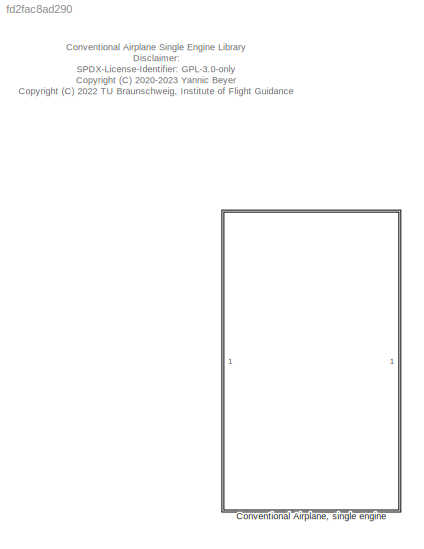
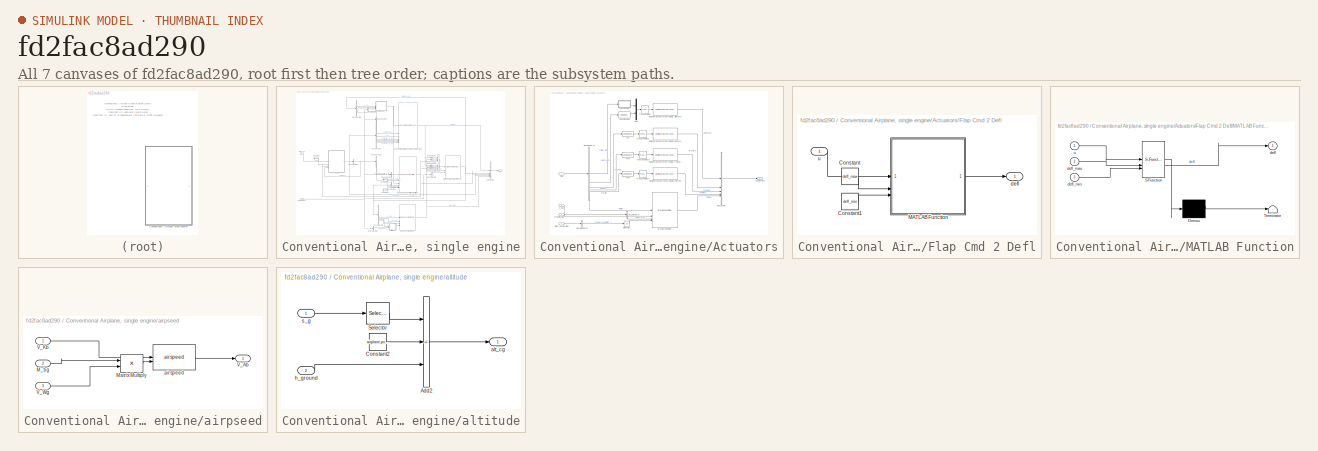
[diagram: thumbnail index - all 7 canvases of the model, root first then tree order]
MODEL slx_fd2fac8ad290
KIND library
CONFIG AbsTol = auto
CONFIG EnableMultiTasking = off
CONFIG FixedStep = auto
CONFIG MaxStep = auto
CONFIG MinStep = auto
CONFIG RelTol = 1e-3
CONFIG SampleTimeConstraint = Unconstrained
CONFIG SolverName = VariableStepAuto
CONFIG StartTime = 0.0
CONFIG StopTime = 10.0
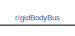
[diagram: Conventional Airplane, single engine - part 1/6, top center region]
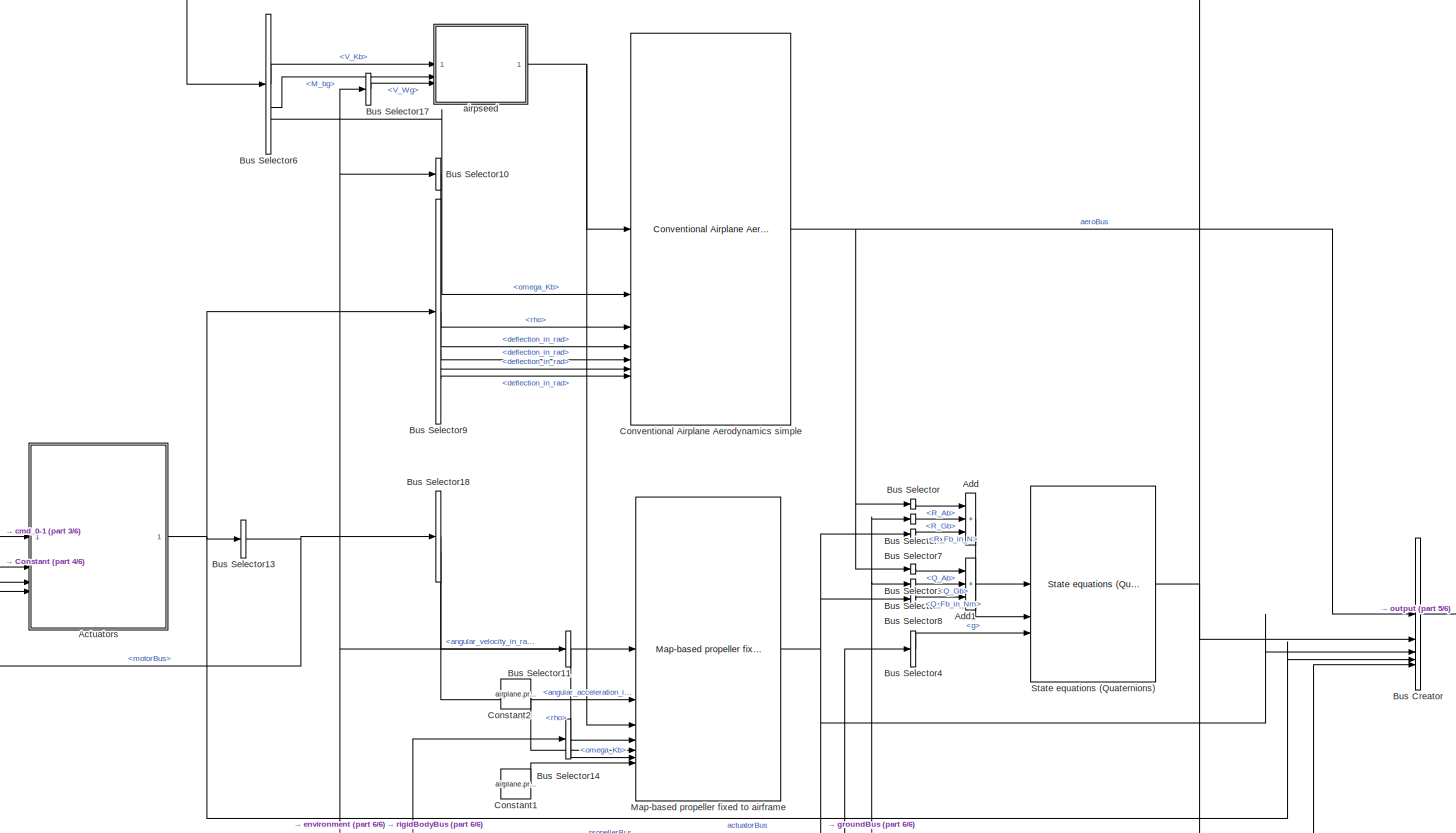
[diagram: Conventional Airplane, single engine - part 2/6, full width, middle band]
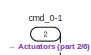
[diagram: Conventional Airplane, single engine - part 3/6, middle left region]
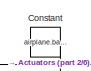
[diagram: Conventional Airplane, single engine - part 4/6, middle left region]
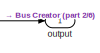
[diagram: Conventional Airplane, single engine - part 5/6, middle right region]
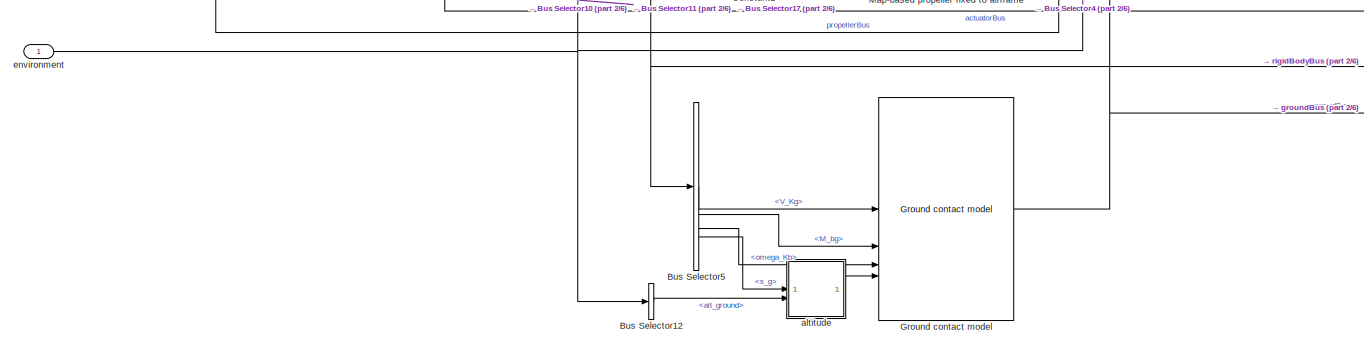
[diagram: Conventional Airplane, single engine - part 6/6, full width, bottom band]
BLOCK [SubSystem] Conventional Airplane, single engine
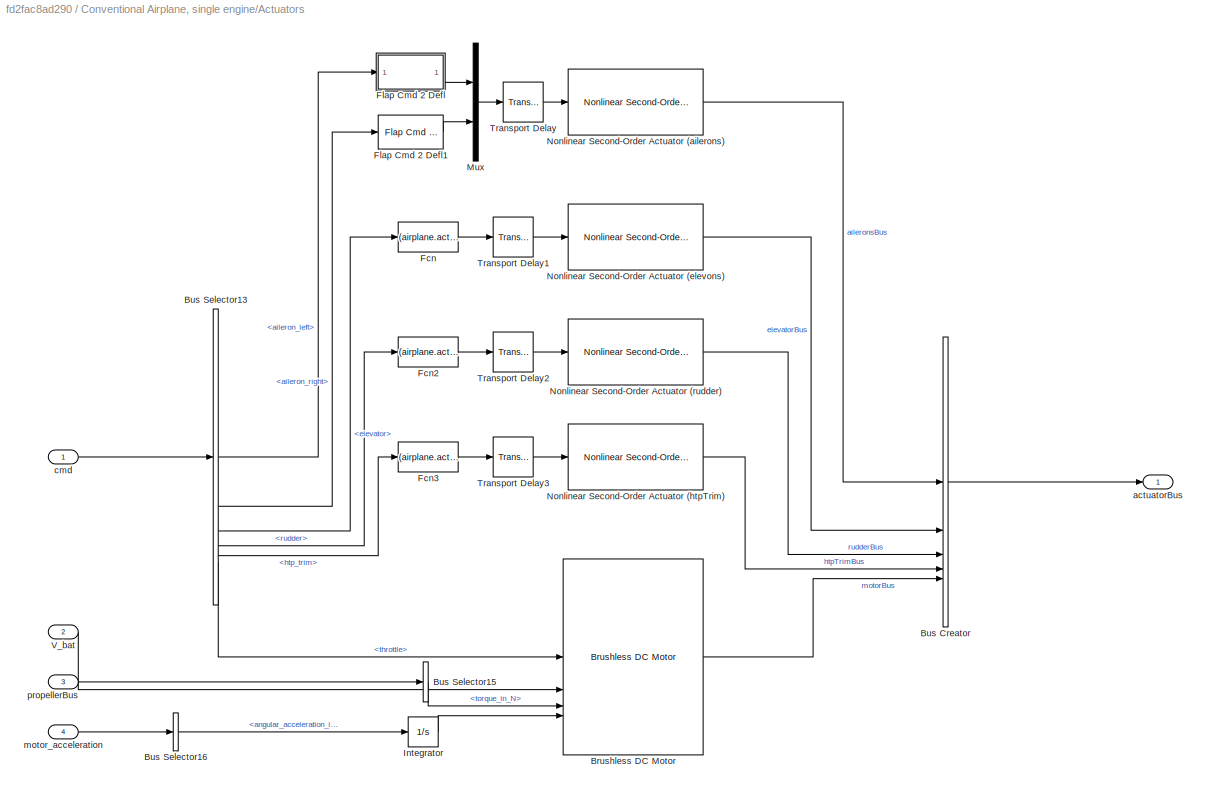
BLOCK [SubSystem] Conventional Airplane, single engine/Actuators
BLOCK [Reference] Conventional Airplane, single engine/Actuators/Brushless DC Motor  REF=actuators_lib/Brushless DC Motor  (lib defined in slx_c2decc952d1f)
  SourceBlock = actuators_lib/Brushless DC Motor
  SourceProductName = LADAC
BLOCK [BusCreator] Conventional Airplane, single engine/Actuators/Bus Creator
  DisplayOption = bar
  InheritFromInputs = on
  Inputs = 5
BLOCK [BusSelector] Conventional Airplane, single engine/Actuators/Bus Selector13
  OutputSignals = aileron_left,aileron_right,elevator,rudder,htp_trim,throttle
BLOCK [BusSelector] Conventional Airplane, single engine/Actuators/Bus Selector15
  OutputSignals = torque_in_N
BLOCK [BusSelector] Conventional Airplane, single engine/Actuators/Bus Selector16
  OutputSignals = angular_acceleration_in_rad_per_square_s
BLOCK [Fcn] Conventional Airplane, single engine/Actuators/Fcn
  Expr = (airplane.act.elevator.deflectionMax - airplane.act.elevator.deflectionMin)*u + airplane.act.elevator.deflectionMin
BLOCK [Fcn] Conventional Airplane, single engine/Actuators/Fcn2
  Expr = (airplane.act.rudder.deflectionMax - airplane.act.rudder.deflectionMin)*u + airplane.act.rudder.deflectionMin
BLOCK [Fcn] Conventional Airplane, single engine/Actuators/Fcn3
  Expr = (airplane.act.htpTrim.deflectionMax - airplane.act.htpTrim.deflectionMin)*u + airplane.act.htpTrim.deflectionMin
BLOCK [SubSystem] Conventional Airplane, single engine/Actuators/Flap Cmd 2 Defl
BLOCK [Constant] Conventional Airplane, single engine/Actuators/Flap Cmd 2 Defl/Constant
  Value = defl_max
BLOCK [Constant] Conventional Airplane, single engine/Actuators/Flap Cmd 2 Defl/Constant1
  Value = defl_min
BLOCK [SubSystem] Conventional Airplane, single engine/Actuators/Flap Cmd 2 Defl/MATLAB Function
  ErrorFcn = Stateflow.Translate.translate
  PermitHierarchicalResolution = ExplicitOnly
  SFBlockType = MATLAB Function
  TreatAsAtomicUnit = on
BLOCK [Demux] Conventional Airplane, single engine/Actuators/Flap Cmd 2 Defl/MATLAB Function/ Demux 
  Outputs = 1
BLOCK [S-Function] Conventional Airplane, single engine/Actuators/Flap Cmd 2 Defl/MATLAB Function/ SFunction 
  EnableBusSupport = off
  FunctionName = sf_sfun
  PortCounts = [3 2]
  SFcnIsStateOwnerBlock = off
  SFunctionDeploymentMode = off
  Tag = Stateflow S-Function 1
BLOCK [Terminator] Conventional Airplane, single engine/Actuators/Flap Cmd 2 Defl/MATLAB Function/ Terminator 
BLOCK [Outport] Conventional Airplane, single engine/Actuators/Flap Cmd 2 Defl/MATLAB Function/defl
  VectorParamsAs1DForOutWhenUnconnected = off
BLOCK [Inport] Conventional Airplane, single engine/Actuators/Flap Cmd 2 Defl/MATLAB Function/defl_max
  Port = 2
BLOCK [Inport] Conventional Airplane, single engine/Actuators/Flap Cmd 2 Defl/MATLAB Function/defl_min
  Port = 3
BLOCK [Inport] Conventional Airplane, single engine/Actuators/Flap Cmd 2 Defl/MATLAB Function/u
BLOCK [Outport] Conventional Airplane, single engine/Actuators/Flap Cmd 2 Defl/defl
  VectorParamsAs1DForOutWhenUnconnected = off
BLOCK [Inport] Conventional Airplane, single engine/Actuators/Flap Cmd 2 Defl/u
BLOCK [Reference] Conventional Airplane, single engine/Actuators/Flap Cmd 2 Defl1  REF=$bdroot/Conventional Airplane,
single engine/Actuators/Flap Cmd 2 Defl
  SourceBlock = $bdroot/Conventional Airplane,\nsingle engine/Actuators/Flap Cmd 2 Defl
BLOCK [Integrator] Conventional Airplane, single engine/Actuators/Integrator
  ContinuousStateAttributes = 'motor_speed'
  InitialCondition = airplane.ic.motor_speed
BLOCK [Mux] Conventional Airplane, single engine/Actuators/Mux
  DisplayOption = bar
  Inputs = 2
BLOCK [Reference] Conventional Airplane, single engine/Actuators/Nonlinear Second-Order Actuator (ailerons)  REF=actuators_lib/Nonlinear Second-Order Actuator  (lib defined in slx_c2decc952d1f)
  SourceBlock = actuators_lib/Nonlinear Second-Order Actuator
  SourceProductName = LADAC
BLOCK [Reference] Conventional Airplane, single engine/Actuators/Nonlinear Second-Order Actuator (elevons)  REF=actuators_lib/Nonlinear Second-Order Actuator  (lib defined in slx_c2decc952d1f)
  SourceBlock = actuators_lib/Nonlinear Second-Order Actuator
  SourceProductName = LADAC
BLOCK [Reference] Conventional Airplane, single engine/Actuators/Nonlinear Second-Order Actuator (htpTrim)  REF=actuators_lib/Nonlinear Second-Order Actuator  (lib defined in slx_c2decc952d1f)
  SourceBlock = actuators_lib/Nonlinear Second-Order Actuator
  SourceProductName = LADAC
BLOCK [Reference] Conventional Airplane, single engine/Actuators/Nonlinear Second-Order Actuator (rudder)  REF=actuators_lib/Nonlinear Second-Order Actuator  (lib defined in slx_c2decc952d1f)
  SourceBlock = actuators_lib/Nonlinear Second-Order Actuator
  SourceProductName = LADAC
BLOCK [TransportDelay] Conventional Airplane, single engine/Actuators/Transport Delay
  DelayTime = airplane.act.ailerons.delay
BLOCK [TransportDelay] Conventional Airplane, single engine/Actuators/Transport Delay1
  DelayTime = airplane.act.elevator.delay
BLOCK [TransportDelay] Conventional Airplane, single engine/Actuators/Transport Delay2
  DelayTime = airplane.act.rudder.delay
BLOCK [TransportDelay] Conventional Airplane, single engine/Actuators/Transport Delay3
  DelayTime = airplane.act.htpTrim.delay
BLOCK [Inport] Conventional Airplane, single engine/Actuators/V_bat
  Port = 2
BLOCK [Outport] Conventional Airplane, single engine/Actuators/actuatorBus
  VectorParamsAs1DForOutWhenUnconnected = off
BLOCK [Inport] Conventional Airplane, single engine/Actuators/cmd
BLOCK [Inport] Conventional Airplane, single engine/Actuators/motor_acceleration
  Port = 4
BLOCK [Inport] Conventional Airplane, single engine/Actuators/propellerBus
  Port = 3
BLOCK [Sum] Conventional Airplane, single engine/Add
  IconShape = rectangular
  Inputs = +++
BLOCK [Sum] Conventional Airplane, single engine/Add1
  IconShape = rectangular
  Inputs = +++
BLOCK [BusCreator] Conventional Airplane, single engine/Bus Creator
  DisplayOption = bar
  InheritFromInputs = on
  Inputs = 5
BLOCK [BusSelector] Conventional Airplane, single engine/Bus Selector
  OutputSignals = R_Ab
BLOCK [BusSelector] Conventional Airplane, single engine/Bus Selector1
  OutputSignals = Q_Ab
BLOCK [BusSelector] Conventional Airplane, single engine/Bus Selector10
  OutputSignals = atmosphere.rho
BLOCK [BusSelector] Conventional Airplane, single engine/Bus Selector11
  OutputSignals = atmosphere.rho
BLOCK [BusSelector] Conventional Airplane, single engine/Bus Selector12
  OutputSignals = alt_ground
BLOCK [BusSelector] Conventional Airplane, single engine/Bus Selector13
  OutputSignals = motorBus
BLOCK [BusSelector] Conventional Airplane, single engine/Bus Selector14
  OutputSignals = omega_Kb
BLOCK [BusSelector] Conventional Airplane, single engine/Bus Selector17
  OutputSignals = wind.V_Wg
BLOCK [BusSelector] Conventional Airplane, single engine/Bus Selector18
  OutputSignals = angular_velocity_in_rad_per_s,angular_acceleration_in_rad_per_square_s
BLOCK [BusSelector] Conventional Airplane, single engine/Bus Selector2
  OutputSignals = forces_and_moments.R_Gb
BLOCK [BusSelector] Conventional Airplane, single engine/Bus Selector3
  OutputSignals = forces_and_moments.Q_Gb
BLOCK [BusSelector] Conventional Airplane, single engine/Bus Selector4
  OutputSignals = g
BLOCK [BusSelector] Conventional Airplane, single engine/Bus Selector5
  OutputSignals = V_Kg,M_bg,omega_Kb,s_g
BLOCK [BusSelector] Conventional Airplane, single engine/Bus Selector6
  OutputSignals = V_Kb,M_bg,omega_Kb
BLOCK [BusSelector] Conventional Airplane, single engine/Bus Selector7
  OutputSignals = R_Fb_in_N
BLOCK [BusSelector] Conventional Airplane, single engine/Bus Selector8
  OutputSignals = Q_Fb_in_Nm
BLOCK [BusSelector] Conventional Airplane, single engine/Bus Selector9
  OutputSignals = aileronsBus.deflection_in_rad,elevatorBus.deflection_in_rad,rudderBus.deflection_in_rad,htpTrimBus.deflection_in_rad
BLOCK [Constant] Conventional Airplane, single engine/Constant
  Value = airplane.bat.V
BLOCK [Constant] Conventional Airplane, single engine/Constant1
  Value = airplane.prop.config.Rot
BLOCK [Constant] Conventional Airplane, single engine/Constant2
  Value = airplane.prop.config.Pos - airplane.config.cg
BLOCK [Reference] Conventional Airplane, single engine/Conventional Airplane Aerodynamics simple  REF=conventional_airplane_aerodynamics_lib/Conventional Airplane Aerodynamics  (lib defined in slx_d93a6ff8d1eb)
simple
  SourceBlock = conventional_airplane_aerodynamics_lib/Conventional Airplane Aerodynamics\nsimple
  SourceProductName = LADAC
BLOCK [Reference] Conventional Airplane, single engine/Ground contact model  REF=ground_lib/Ground contact model  (lib defined in slx_83645a88b0f4)
  SourceBlock = ground_lib/Ground contact model
  SourceProductName = LADAC
BLOCK [Reference] Conventional Airplane, single engine/Map-based propeller fixed to airframe  REF=propulsion_lib/Map-based propeller fixed to airframe  (lib defined in slx_12561ba25cc8)
  SourceBlock = propulsion_lib/Map-based propeller fixed to airframe
  SourceProductName = LADAC
BLOCK [Reference] Conventional Airplane, single engine/State equations (Quaternions)  REF=rigidBody_lib/State equations
(Quaternions)
  SourceBlock = rigidBody_lib/State equations\n(Quaternions)
  SourceProductName = LADAC
BLOCK [SubSystem] Conventional Airplane, single engine/airpseed
BLOCK [Inport] Conventional Airplane, single engine/airpseed/M_bg
  Port = 2
BLOCK [Product] Conventional Airplane, single engine/airpseed/Matrix Multiply
  Multiplication = Matrix(*)
BLOCK [Outport] Conventional Airplane, single engine/airpseed/V_Ab
  VectorParamsAs1DForOutWhenUnconnected = off
BLOCK [Inport] Conventional Airplane, single engine/airpseed/V_Kb
BLOCK [Inport] Conventional Airplane, single engine/airpseed/V_Wg
  Port = 3
BLOCK [Reference] Conventional Airplane, single engine/airpseed/airspeed  REF=flight_parameters_lib/airspeed  (lib defined in slx_01e6108afe6f)
  SourceBlock = flight_parameters_lib/airspeed
  SourceProductName = LADAC
BLOCK [SubSystem] Conventional Airplane, single engine/altitude
BLOCK [Sum] Conventional Airplane, single engine/altitude/Add2
  IconShape = rectangular
  Inputs = -+-
BLOCK [Constant] Conventional Airplane, single engine/altitude/Constant2
  Value = airplane.posRef.alt
BLOCK [Selector] Conventional Airplane, single engine/altitude/Selector
  IndexOptions = Index vector (dialog)
  Indices = 3
  InputPortWidth = 3
  OutputSizes = 1
BLOCK [Outport] Conventional Airplane, single engine/altitude/alt_cg
  VectorParamsAs1DForOutWhenUnconnected = off
BLOCK [Inport] Conventional Airplane, single engine/altitude/h_ground
  Port = 2
BLOCK [Inport] Conventional Airplane, single engine/altitude/s_g
BLOCK [Inport] Conventional Airplane, single engine/cmd_0-1
  OutDataTypeStr = Bus: cmdBus
  Port = 2
BLOCK [Inport] Conventional Airplane, single engine/environment
  OutDataTypeStr = Bus: envirBus
BLOCK [Outport] Conventional Airplane, single engine/output
  VectorParamsAs1DForOutWhenUnconnected = off
ANNOTATION (root): Conventional Airplane Single Engine Library Disclaimer: SPDX-License-Identifier: GPL-3.0-only <copyright redacted>
LINE Conventional Airplane, single engine/Actuators/Brushless DC Motor:1 -> Conventional Airplane, single engine/Actuators/Bus Creator:5
LINE Conventional Airplane, single engine/Actuators/Bus Creator:1 -> Conventional Airplane, single engine/Actuators/actuatorBus:1
LINE Conventional Airplane, single engine/Actuators/Bus Selector13:1 -> Conventional Airplane, single engine/Actuators/Flap Cmd 2 Defl:1
LINE Conventional Airplane, single engine/Actuators/Bus Selector13:2 -> Conventional Airplane, single engine/Actuators/Flap Cmd 2 Defl1:1
LINE Conventional Airplane, single engine/Actuators/Bus Selector13:3 -> Conventional Airplane, single engine/Actuators/Fcn:1
LINE Conventional Airplane, single engine/Actuators/Bus Selector13:4 -> Conventional Airplane, single engine/Actuators/Fcn2:1
LINE Conventional Airplane, single engine/Actuators/Bus Selector13:5 -> Conventional Airplane, single engine/Actuators/Fcn3:1
LINE Conventional Airplane, single engine/Actuators/Bus Selector13:6 -> Conventional Airplane, single engine/Actuators/Brushless DC Motor:1
LINE Conventional Airplane, single engine/Actuators/Bus Selector15:1 -> Conventional Airplane, single engine/Actuators/Brushless DC Motor:3
LINE Conventional Airplane, single engine/Actuators/Bus Selector16:1 -> Conventional Airplane, single engine/Actuators/Integrator:1
LINE Conventional Airplane, single engine/Actuators/Fcn2:1 -> Conventional Airplane, single engine/Actuators/Transport Delay2:1
LINE Conventional Airplane, single engine/Actuators/Fcn3:1 -> Conventional Airplane, single engine/Actuators/Transport Delay3:1
LINE Conventional Airplane, single engine/Actuators/Fcn:1 -> Conventional Airplane, single engine/Actuators/Transport Delay1:1
LINE Conventional Airplane, single engine/Actuators/Flap Cmd 2 Defl/Constant1:1 -> Conventional Airplane, single engine/Actuators/Flap Cmd 2 Defl/MATLAB Function:3
LINE Conventional Airplane, single engine/Actuators/Flap Cmd 2 Defl/Constant:1 -> Conventional Airplane, single engine/Actuators/Flap Cmd 2 Defl/MATLAB Function:2
LINE Conventional Airplane, single engine/Actuators/Flap Cmd 2 Defl/MATLAB Function:1 -> Conventional Airplane, single engine/Actuators/Flap Cmd 2 Defl/defl:1
LINE Conventional Airplane, single engine/Actuators/Flap Cmd 2 Defl/u:1 -> Conventional Airplane, single engine/Actuators/Flap Cmd 2 Defl/MATLAB Function:1
LINE Conventional Airplane, single engine/Actuators/Flap Cmd 2 Defl1:1 -> Conventional Airplane, single engine/Actuators/Mux:2
LINE Conventional Airplane, single engine/Actuators/Flap Cmd 2 Defl:1 -> Conventional Airplane, single engine/Actuators/Mux:1
LINE Conventional Airplane, single engine/Actuators/Integrator:1 -> Conventional Airplane, single engine/Actuators/Brushless DC Motor:4
LINE Conventional Airplane, single engine/Actuators/Mux:1 -> Conventional Airplane, single engine/Actuators/Transport Delay:1
LINE Conventional Airplane, single engine/Actuators/Nonlinear Second-Order Actuator (ailerons):1 -> Conventional Airplane, single engine/Actuators/Bus Creator:1
LINE Conventional Airplane, single engine/Actuators/Nonlinear Second-Order Actuator (elevons):1 -> Conventional Airplane, single engine/Actuators/Bus Creator:2
LINE Conventional Airplane, single engine/Actuators/Nonlinear Second-Order Actuator (htpTrim):1 -> Conventional Airplane, single engine/Actuators/Bus Creator:4
LINE Conventional Airplane, single engine/Actuators/Nonlinear Second-Order Actuator (rudder):1 -> Conventional Airplane, single engine/Actuators/Bus Creator:3
LINE Conventional Airplane, single engine/Actuators/Transport Delay1:1 -> Conventional Airplane, single engine/Actuators/Nonlinear Second-Order Actuator (elevons):1
LINE Conventional Airplane, single engine/Actuators/Transport Delay2:1 -> Conventional Airplane, single engine/Actuators/Nonlinear Second-Order Actuator (rudder):1
LINE Conventional Airplane, single engine/Actuators/Transport Delay3:1 -> Conventional Airplane, single engine/Actuators/Nonlinear Second-Order Actuator (htpTrim):1
LINE Conventional Airplane, single engine/Actuators/Transport Delay:1 -> Conventional Airplane, single engine/Actuators/Nonlinear Second-Order Actuator (ailerons):1
LINE Conventional Airplane, single engine/Actuators/V_bat:1 -> Conventional Airplane, single engine/Actuators/Brushless DC Motor:2
LINE Conventional Airplane, single engine/Actuators/cmd:1 -> Conventional Airplane, single engine/Actuators/Bus Selector13:1
LINE Conventional Airplane, single engine/Actuators/motor_acceleration:1 -> Conventional Airplane, single engine/Actuators/Bus Selector16:1
LINE Conventional Airplane, single engine/Actuators/propellerBus:1 -> Conventional Airplane, single engine/Actuators/Bus Selector15:1
NET Conventional Airplane, single engine/Actuators:1 -> Conventional Airplane, single engine/Bus Creator:4, Conventional Airplane, single engine/Bus Selector13:1, Conventional Airplane, single engine/Bus Selector9:1
LINE Conventional Airplane, single engine/Add1:1 -> Conventional Airplane, single engine/State equations (Quaternions):2
LINE Conventional Airplane, single engine/Add:1 -> Conventional Airplane, single engine/State equations (Quaternions):1
LINE Conventional Airplane, single engine/Bus Creator:1 -> Conventional Airplane, single engine/output:1
LINE Conventional Airplane, single engine/Bus Selector10:1 -> Conventional Airplane, single engine/Conventional Airplane Aerodynamics simple:3
LINE Conventional Airplane, single engine/Bus Selector11:1 -> Conventional Airplane, single engine/Map-based propeller fixed to airframe:4
LINE Conventional Airplane, single engine/Bus Selector12:1 -> Conventional Airplane, single engine/altitude:2
NET Conventional Airplane, single engine/Bus Selector13:1 -> Conventional Airplane, single engine/Actuators:4, Conventional Airplane, single engine/Bus Selector18:1
LINE Conventional Airplane, single engine/Bus Selector14:1 -> Conventional Airplane, single engine/Map-based propeller fixed to airframe:6
LINE Conventional Airplane, single engine/Bus Selector17:1 -> Conventional Airplane, single engine/airpseed:3
LINE Conventional Airplane, single engine/Bus Selector18:1 -> Conventional Airplane, single engine/Map-based propeller fixed to airframe:1
LINE Conventional Airplane, single engine/Bus Selector18:2 -> Conventional Airplane, single engine/Map-based propeller fixed to airframe:2
LINE Conventional Airplane, single engine/Bus Selector1:1 -> Conventional Airplane, single engine/Add1:1
LINE Conventional Airplane, single engine/Bus Selector2:1 -> Conventional Airplane, single engine/Add:2
LINE Conventional Airplane, single engine/Bus Selector3:1 -> Conventional Airplane, single engine/Add1:2
LINE Conventional Airplane, single engine/Bus Selector4:1 -> Conventional Airplane, single engine/State equations (Quaternions):3
LINE Conventional Airplane, single engine/Bus Selector5:1 -> Conventional Airplane, single engine/Ground contact model:1
LINE Conventional Airplane, single engine/Bus Selector5:2 -> Conventional Airplane, single engine/Ground contact model:2
LINE Conventional Airplane, single engine/Bus Selector5:3 -> Conventional Airplane, single engine/Ground contact model:3
LINE Conventional Airplane, single engine/Bus Selector5:4 -> Conventional Airplane, single engine/altitude:1
LINE Conventional Airplane, single engine/Bus Selector6:1 -> Conventional Airplane, single engine/airpseed:1
LINE Conventional Airplane, single engine/Bus Selector6:2 -> Conventional Airplane, single engine/airpseed:2
LINE Conventional Airplane, single engine/Bus Selector6:3 -> Conventional Airplane, single engine/Conventional Airplane Aerodynamics simple:2
LINE Conventional Airplane, single engine/Bus Selector7:1 -> Conventional Airplane, single engine/Add:3
LINE Conventional Airplane, single engine/Bus Selector8:1 -> Conventional Airplane, single engine/Add1:3
LINE Conventional Airplane, single engine/Bus Selector9:1 -> Conventional Airplane, single engine/Conventional Airplane Aerodynamics simple:4
LINE Conventional Airplane, single engine/Bus Selector9:2 -> Conventional Airplane, single engine/Conventional Airplane Aerodynamics simple:5
LINE Conventional Airplane, single engine/Bus Selector9:3 -> Conventional Airplane, single engine/Conventional Airplane Aerodynamics simple:6
LINE Conventional Airplane, single engine/Bus Selector9:4 -> Conventional Airplane, single engine/Conventional Airplane Aerodynamics simple:7
LINE Conventional Airplane, single engine/Bus Selector:1 -> Conventional Airplane, single engine/Add:1
LINE Conventional Airplane, single engine/Constant1:1 -> Conventional Airplane, single engine/Map-based propeller fixed to airframe:7
LINE Conventional Airplane, single engine/Constant2:1 -> Conventional Airplane, single engine/Map-based propeller fixed to airframe:5
LINE Conventional Airplane, single engine/Constant:1 -> Conventional Airplane, single engine/Actuators:2
NET Conventional Airplane, single engine/Conventional Airplane Aerodynamics simple:1 -> Conventional Airplane, single engine/Bus Creator:1, Conventional Airplane, single engine/Bus Selector1:1, Conventional Airplane, single engine/Bus Selector:1
NET Conventional Airplane, single engine/Ground contact model:1 -> Conventional Airplane, single engine/Bus Creator:5, Conventional Airplane, single engine/Bus Selector2:1, Conventional Airplane, single engine/Bus Selector3:1
NET Conventional Airplane, single engine/Map-based propeller fixed to airframe:1 -> Conventional Airplane, single engine/Actuators:3, Conventional Airplane, single engine/Bus Creator:3, Conventional Airplane, single engine/Bus Selector7:1, Conventional Airplane, single engine/Bus Selector8:1
NET Conventional Airplane, single engine/State equations (Quaternions):1 -> Conventional Airplane, single engine/Bus Creator:2, Conventional Airplane, single engine/Bus Selector14:1, Conventional Airplane, single engine/Bus Selector5:1, Conventional Airplane, single engine/Bus Selector6:1
LINE Conventional Airplane, single engine/airpseed/M_bg:1 -> Conventional Airplane, single engine/airpseed/Matrix Multiply:1
LINE Conventional Airplane, single engine/airpseed/Matrix Multiply:1 -> Conventional Airplane, single engine/airpseed/airspeed:2
LINE Conventional Airplane, single engine/airpseed/V_Kb:1 -> Conventional Airplane, single engine/airpseed/airspeed:1
LINE Conventional Airplane, single engine/airpseed/V_Wg:1 -> Conventional Airplane, single engine/airpseed/Matrix Multiply:2
LINE Conventional Airplane, single engine/airpseed/airspeed:1 -> Conventional Airplane, single engine/airpseed/V_Ab:1
NET Conventional Airplane, single engine/airpseed:1 -> Conventional Airplane, single engine/Conventional Airplane Aerodynamics simple:1, Conventional Airplane, single engine/Map-based propeller fixed to airframe:3
LINE Conventional Airplane, single engine/altitude/Add2:1 -> Conventional Airplane, single engine/altitude/alt_cg:1
LINE Conventional Airplane, single engine/altitude/Constant2:1 -> Conventional Airplane, single engine/altitude/Add2:2
LINE Conventional Airplane, single engine/altitude/Selector:1 -> Conventional Airplane, single engine/altitude/Add2:1
LINE Conventional Airplane, single engine/altitude/h_ground:1 -> Conventional Airplane, single engine/altitude/Add2:3
LINE Conventional Airplane, single engine/altitude/s_g:1 -> Conventional Airplane, single engine/altitude/Selector:1
LINE Conventional Airplane, single engine/altitude:1 -> Conventional Airplane, single engine/Ground contact model:4
LINE Conventional Airplane, single engine/cmd_0-1:1 -> Conventional Airplane, single engine/Actuators:1
NET Conventional Airplane, single engine/environment:1 -> Conventional Airplane, single engine/Bus Selector10:1, Conventional Airplane, single engine/Bus Selector11:1, Conventional Airplane, single engine/Bus Selector12:1, Conventional Airplane, single engine/Bus Selector17:1, Conventional Airplane, single engine/Bus Selector4:1
note: NET lines group one-source signal fan-out (src -> all destinations, sorted); 1:1 wires keep LINE
CHART Conventional Airplane,
single engine/Actuators/Flap Cmd 2 Defl/MATLAB Function states=1 transitions=1
  STATE_LABEL 'eML_blk_kernel()'
  STATE_LABEL 'SCRIPT:\nfunction defl = fcn(u,defl_max,defl_min)\ndefl = (defl_max - defl_min).*u + defl_min;\nend'
CHART  states=0 transitions=0
